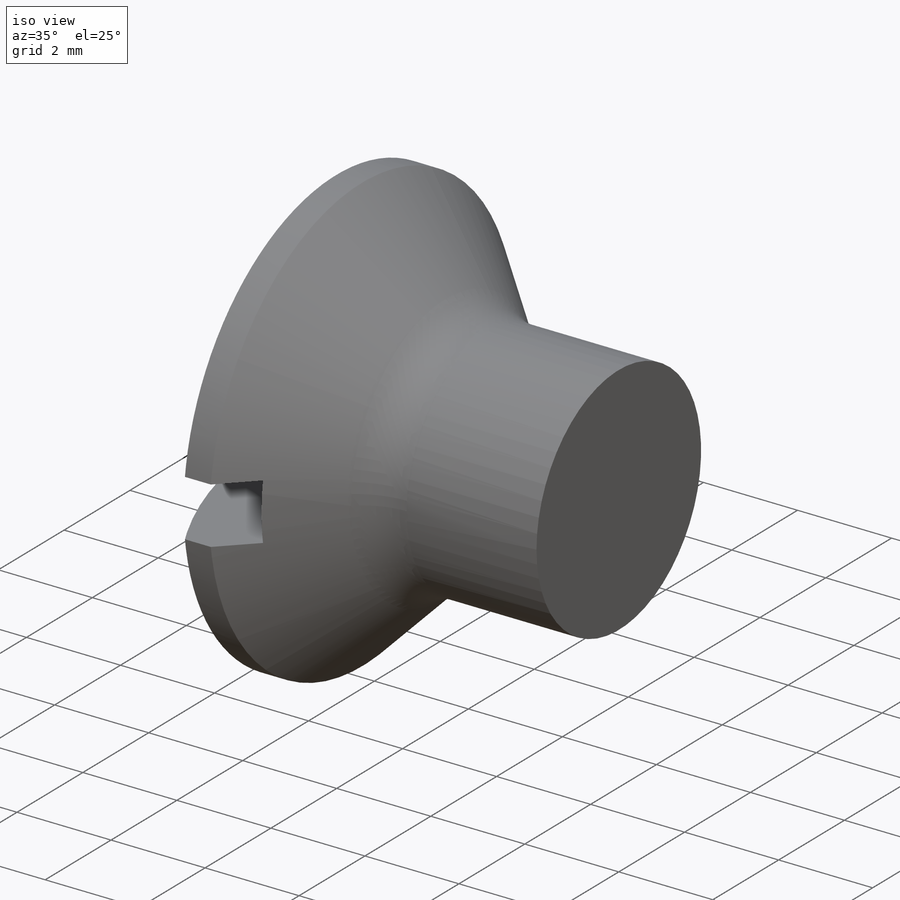
[diagram: iso view]
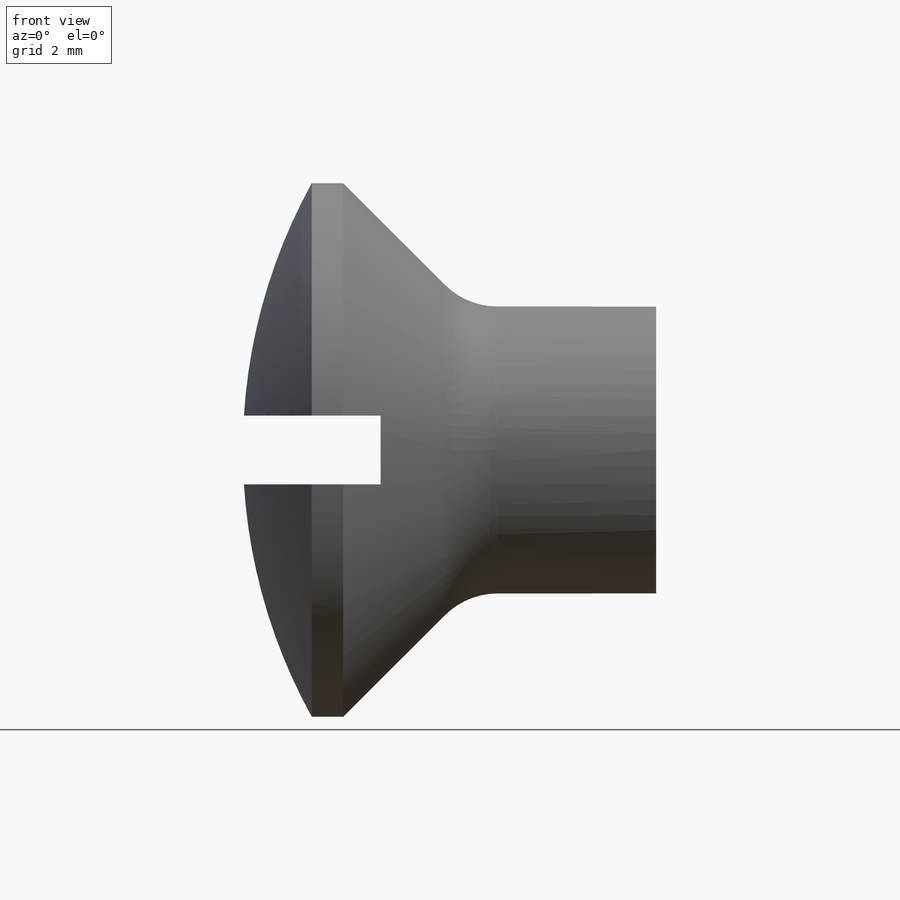
[diagram: front view]
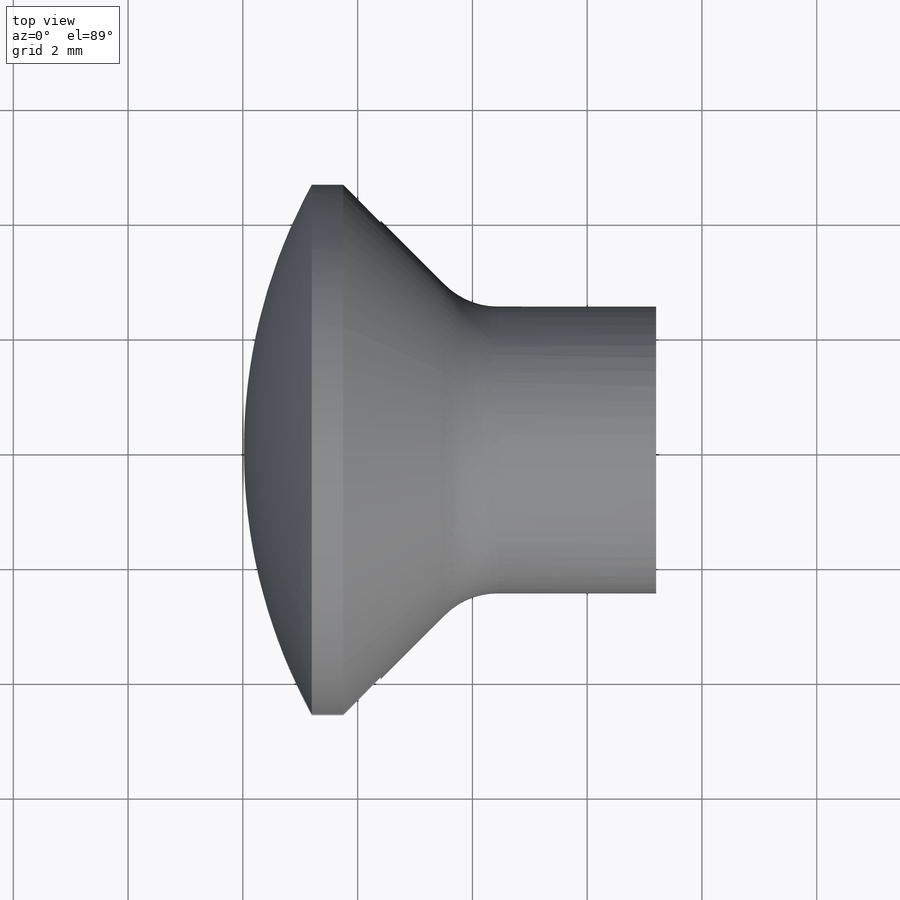
[diagram: top view]
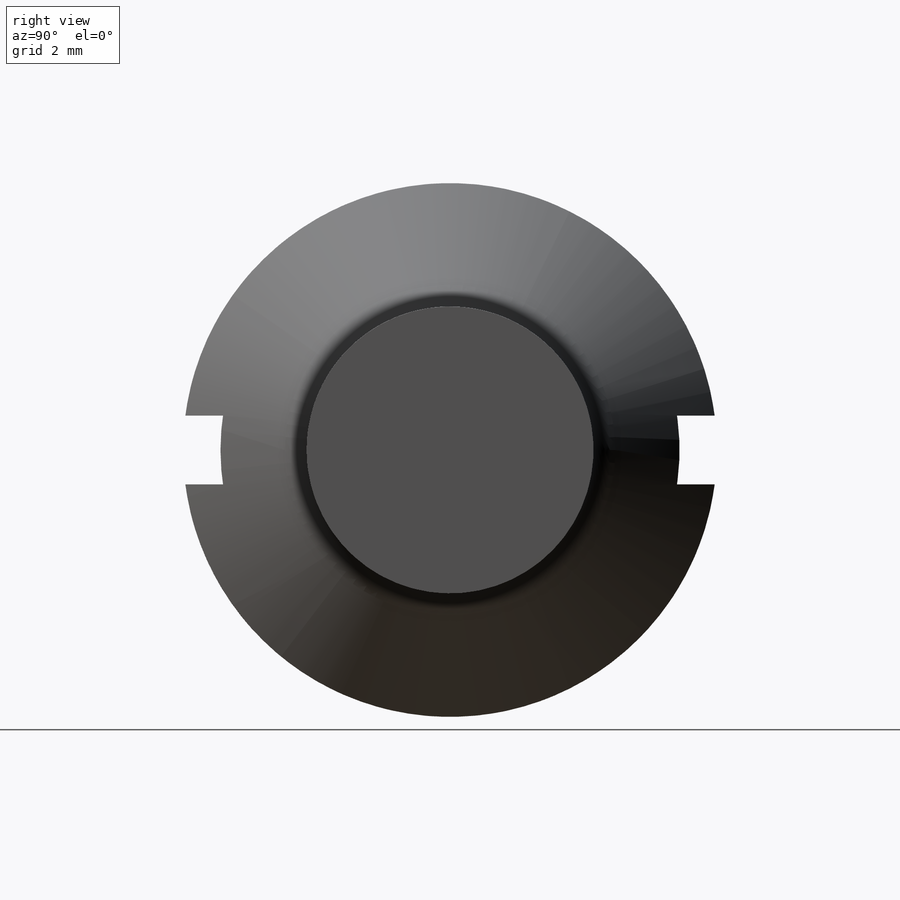
[diagram: right view]
SOLIDWORKS PART (.sldprt)
format: sldprt  version: not decoded by parser v0  size: 347,648 bytes
history: native  units: mm
features: plane x3, sketch x3, material x1, revolve x1, thread x1, cut_extrude x1, fillet x1, cut_revolve x1, pattern_linear x1 (+12 scaffold rows collapsed; 1 parser-record rows omitted)
feature tree (26):
  parser-record x1  (decoder bookkeeping rows leaked as tree rows — omitted from the tree; the rows remain in map.json)
  scaffold x12  (default folders/planes/origin — collapsed)
  material  "Material <not specified>"
  plane  "Plane1"
  plane  "Plane2"
  plane  "Plane3"
  sketch  "BodySke"  dims[c1.D6=~30.246303mm c1.D1=19.05mm c1.D2=~13.470384mm c2.D2=82.0deg c2.D3=34.925mm c2.D4=12.6238mm c2.D5=~9.131049mm c3.D3=31.242mm c3.D5=~7.012646mm c4.D3=9.4488mm c4.D5=~35.477433mm c4.D4=~35.477433mm c5.D3=34.925mm c5.D4=~9.131049mm c6.D3=14.6812mm c6.D4=9.4488mm c6.Length=76.2mm c7.D4=9.4488mm c7.D7=~35.477433mm c7.Diameter=19.05mm c7.D2=~12.050666mm c8.D2=~76.726919deg c9.D2=~12.050666mm c10.D2=82.0deg c10.D3=34.925mm c11.D2=34.925mm c11.D3=~12.519783mm c12.D3=41.0deg c12.D2=14.6812mm c13.D3=~11.435176mm c14.D3=46.0deg c14.D4=31.242mm c14.D6=0.254mm c14.Head_ht=8.0mm c15.D4=~5.886839mm c15.Head_dia=34.925mm c16.D4=~9.882246mm c16.Head_ang=90.0deg c16.Length=40.0mm c16.Diameter=5.0mm c16.Head_dia=18.3mm c16.Advance=0.8mm c16.Thread_nom=8.0mm c16.Thread_lim=~53.575201mm c16.Oval_ht=1.2mm c16.Side_ht=2.7mm c17.Head_dia=9.3mm c17.Length=6.0mm]
  revolve  "Base-Revolve"  [1 undecoded]
  thread  "ThreadCosmetic"  Diameter=2.5mm Thread_length=2.5mm Thread_minor=4.11mm  [1 undecoded]
  cut_extrude  "Slot"  [1 undecoded]
  sketch  "Sketch2"  dims[c1.D1=9.3mm c1.Slot_width=1.2mm c1.D3=4.65mm c1.D4=0.6mm c1.Slot_depth=2.4mm c2.D1=360.0deg c2.Diameter=5.0mm c2.D5=9.3mm]
  fillet  "Fillet1"  Radius=1.3mm
  sketch  "ThdSchSke"  dims[c1.Thread_minor=~1.03886mm c1.Diameter=~1.413535mm c1.Start=~0.988134mm c1.D4=~4.446753mm c1.Vee=60.0deg c2.Thread_minor=~1.03886mm c2.Start=~2.540025mm c2.D1=~0.108159mm c2.D2=~0.108159mm c3.D1=~0.216319mm c3.SideAngle=55.0deg c3.D2=~0.216319mm c3.VeeAngle=70.0deg c3.Thread_minor=4.11mm c3.Overcut=6.25mm c3.Diameter=5.0mm c3.D6=~8.326268mm c4.D1=~8.326268mm c5.D1=90.0deg c5.Start=63.5mm c6.Start=140.4874mm c7.Start=15.8496mm c8.Start=~31.750025mm c9.Start=~15.000001mm c10.Start=4.7mm]
  cut_revolve  "ThreadSchematic"  Angle=360deg
  pattern_linear  "ThdSchPat"  Count1=5 Count2=1 Spacing1=0.625mm Spacing2=50mm Num_threads=5 Advance=0.625mm ConfigurationName=0mm CopiedFlag=1 PartNumberID=0mm
decode coverage: 7 of 9 modeling features carry decoded parameters
note: ~ marks probable driven/reference dimensions
note: 3 parameter values undecoded
note: suppression state not decoded; provenance and decode notes live in map.json
